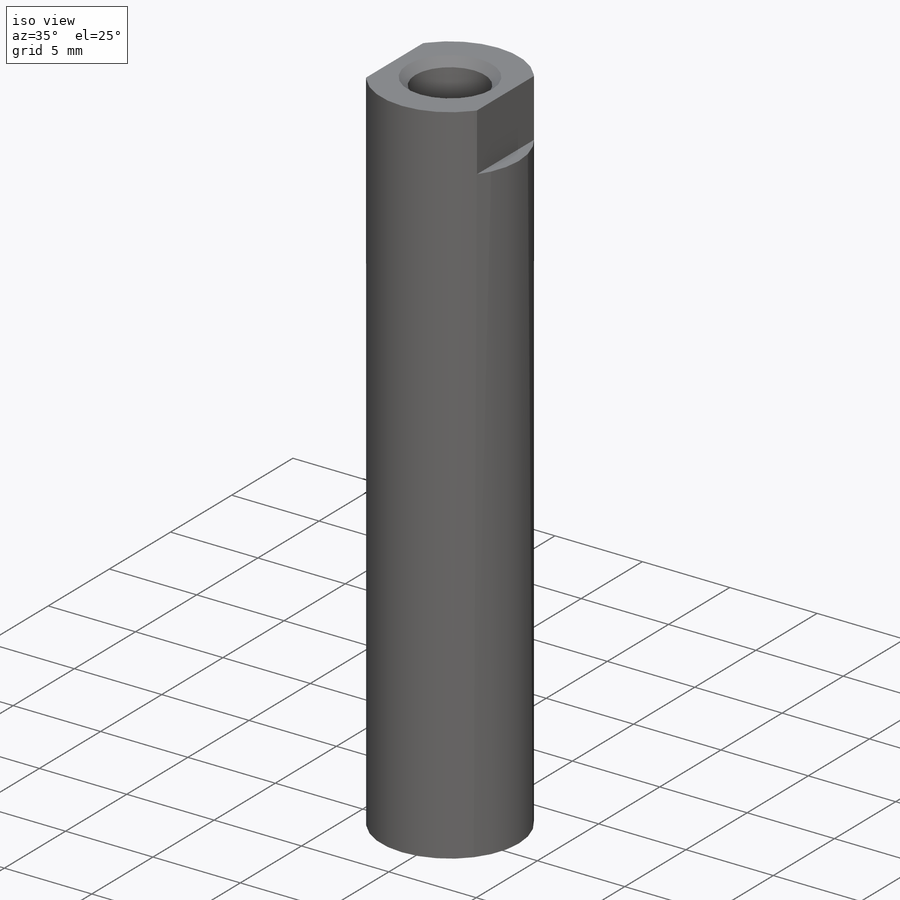
[diagram: iso view]
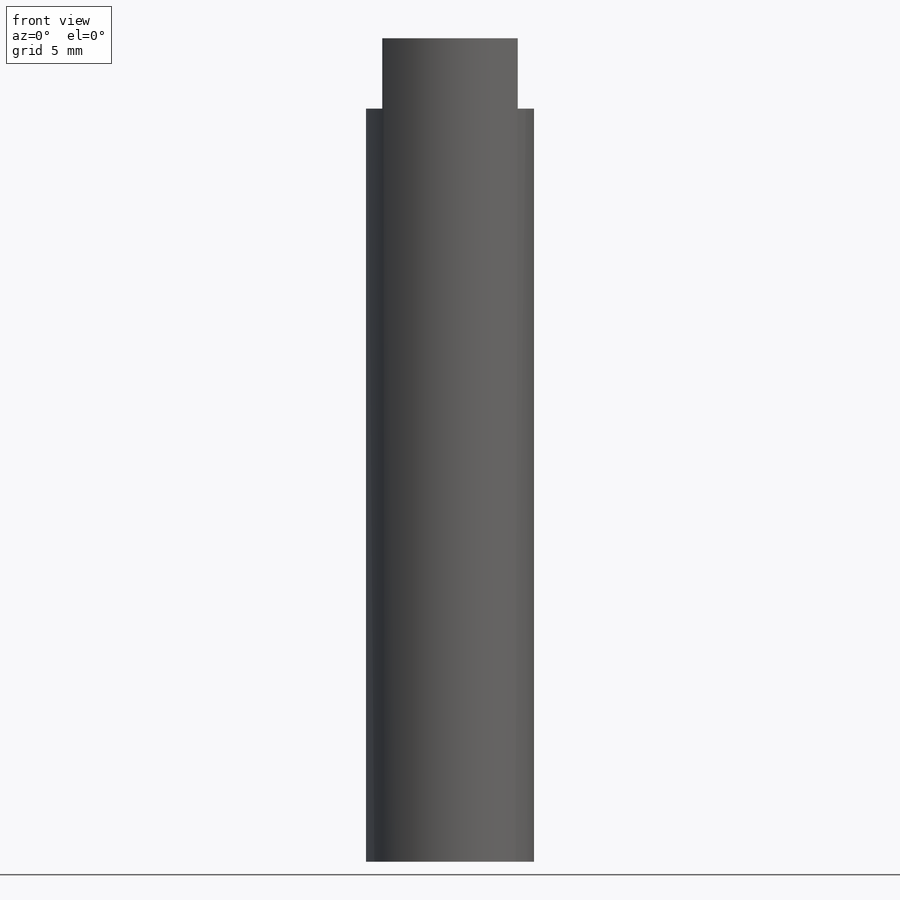
[diagram: front view]
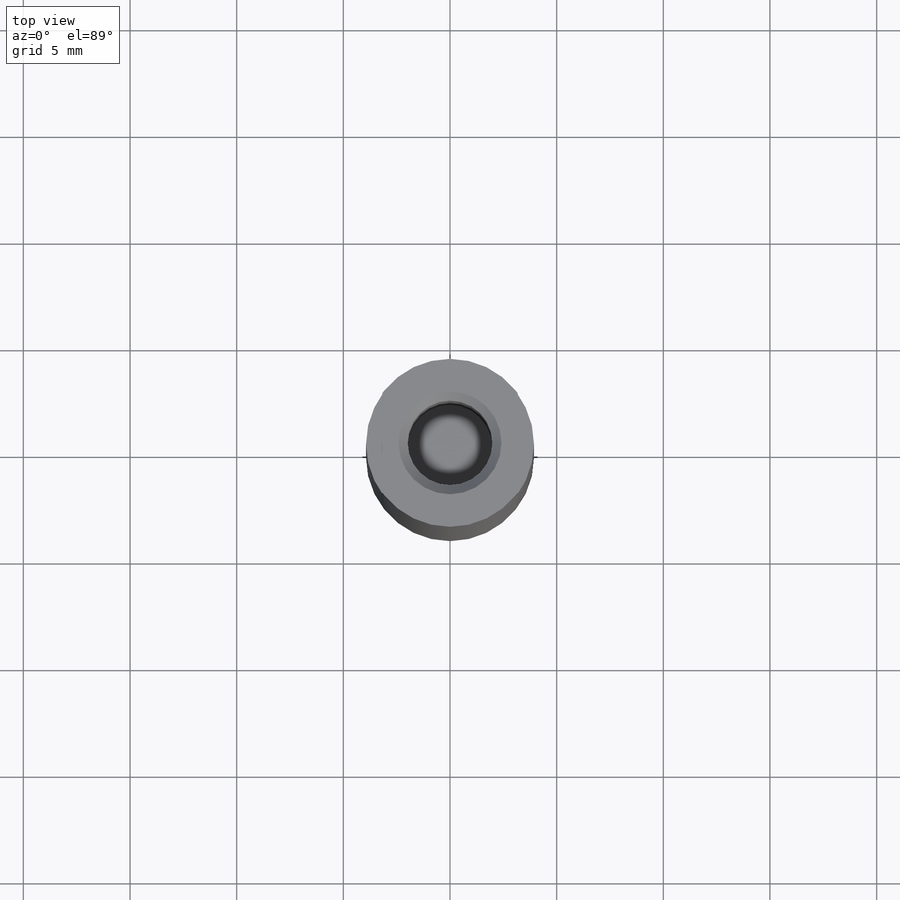
[diagram: top view]
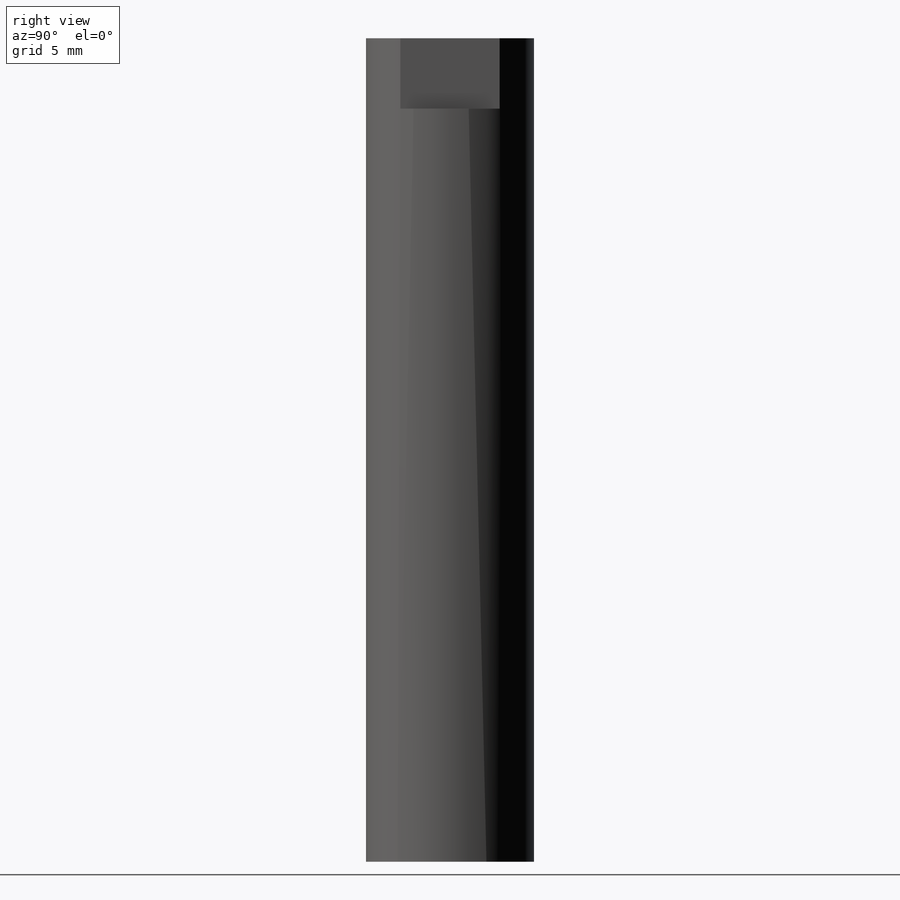
[diagram: right view]
SOLIDWORKS PART (.sldprt)
format: sldprt  version: not decoded by parser v0  size: 263,680 bytes
history: native  units: mm
features: plane x40, thread x36, sketch x16, hole x2, material x1, revolve x1, cut_extrude x1 (+14 scaffold rows collapsed)
feature tree (111):
  scaffold x14  (default folders/planes/origin — collapsed)
  material  "AISI 304"
  sketch  "Sketch1"
  revolve  "Revolve1"  Angle=360deg
  plane  "Plane1"  Offset=38.608mm
  hole  "Hole1"  Diameter=3.96748mm Depth=11.684mm
  sketch  "Sketch3"
  sketch  "Sketch2"  dims[Diameter=~3.96748mm Depth=11.684mm C-Sink Angle=90.0deg C-Sink Diameter=4.826mm]
  thread  "Cosmetic Thread1"  Diameter=11.684mm  [1 undecoded]
  plane  "Plane2"  Offset=38.608mm
  plane  "Plane3"  Offset=38.608mm
  sketch  "Sketch4"
  cut_extrude  "Cut-Extrude1"  Depth=3.302mm
  plane  "Plane4"  Offset=0mm
  hole  "Folder1___EndTag___"  [1 undecoded]
  plane  "b11 XY"
  plane  "b11 XZ"
  plane  "b11 YZ"
  thread  "b11 Y"  [2 undecoded]
  thread  "b11 Z"  [2 undecoded]
  sketch  "b11"
  plane  "b2 XY"
  plane  "b2 XZ"
  plane  "b2 YZ"
  thread  "b2 X"  [2 undecoded]
  thread  "b2 Y"  [2 undecoded]
  thread  "b2 Z"  [2 undecoded]
  sketch  "b2"
  plane  "e1 XY"
  plane  "e1 XZ"
  plane  "e1 YZ"
  thread  "e1 X"  [2 undecoded]
  thread  "e1 Y"  [2 undecoded]
  thread  "e1 Z"  [2 undecoded]
  sketch  "e1"
  plane  "e2 XY"
  plane  "e2 XZ"
  plane  "e2 YZ"
  thread  "e2 X"  [2 undecoded]
  thread  "e2 Y"  [2 undecoded]
  thread  "e2 Z"  [2 undecoded]
  sketch  "e2"
  plane  "f1 XY"
  plane  "f1 XZ"
  plane  "f1 YZ"
  thread  "f1 X"  [2 undecoded]
  thread  "f1 Y"  [2 undecoded]
  thread  "f1 Z"  [2 undecoded]
  sketch  "f1"
  plane  "f2 XY"
  plane  "f2 XZ"
  plane  "f2 YZ"
  thread  "f2 X"  [2 undecoded]
  thread  "f2 Y"  [2 undecoded]
  thread  "f2 Z"  [2 undecoded]
  sketch  "f2"
  plane  "h1 XY"
  plane  "h1 XZ"
  plane  "h1 YZ"
  thread  "h1 X"  [2 undecoded]
  thread  "h1 Y"  [2 undecoded]
  thread  "h1 Z"  [2 undecoded]
  sketch  "h1"
  plane  "h2 XY"
  plane  "h2 XZ"
  plane  "h2 YZ"
  thread  "h2 X"  [2 undecoded]
  thread  "h2 Y"  [2 undecoded]
  thread  "h2 Z"  [2 undecoded]
  sketch  "h2"
  plane  "rod XY"
  plane  "rod XZ"
  plane  "rod YZ"
  thread  "rod X"  [2 undecoded]
  thread  "rod Y"  [2 undecoded]
  thread  "rod Z"  [2 undecoded]
  sketch  "rod"
  plane  "rod to part XY"
  plane  "rod to part XZ"
  plane  "rod to part YZ"
  thread  "rod to part X"  [2 undecoded]
  thread  "rod to part Y"  [2 undecoded]
  thread  "rod to part Z"  [2 undecoded]
  sketch  "rod to part"
  plane  "to rod pivot XY"
  plane  "to rod pivot XZ"
  plane  "to rod pivot YZ"
  thread  "to rod pivot X"  [2 undecoded]
  thread  "to rod pivot Y"  [2 undecoded]
  thread  "to rod pivot Z"  [2 undecoded]
  sketch  "to rod pivot"
  plane  "to rod pivot1 XY"
  plane  "to rod pivot1 XZ"
  plane  "to rod pivot1 YZ"
  thread  "to rod pivot1 X"  [2 undecoded]
  thread  "to rod pivot1 Y"  [2 undecoded]
  thread  "to rod pivot1 Z"  [2 undecoded]
  sketch  "to rod pivot1"
decode coverage: 5 of 56 modeling features carry decoded parameters
note: ~ marks probable driven/reference dimensions
note: 72 parameter values undecoded
summary: no parameter record found for 36 features
note: suppression state not decoded; provenance and decode notes live in map.json
